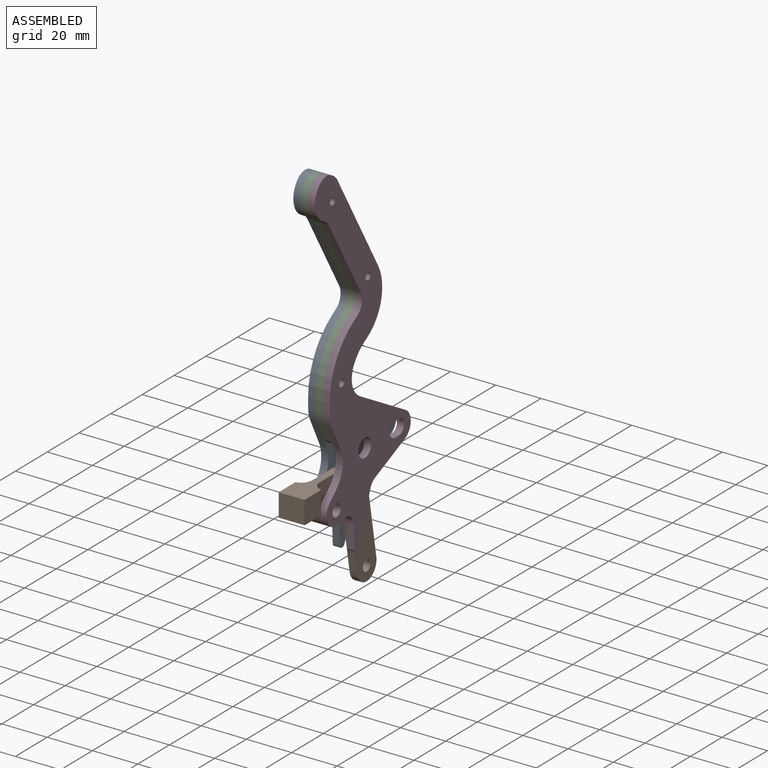
[diagram: assembled view]
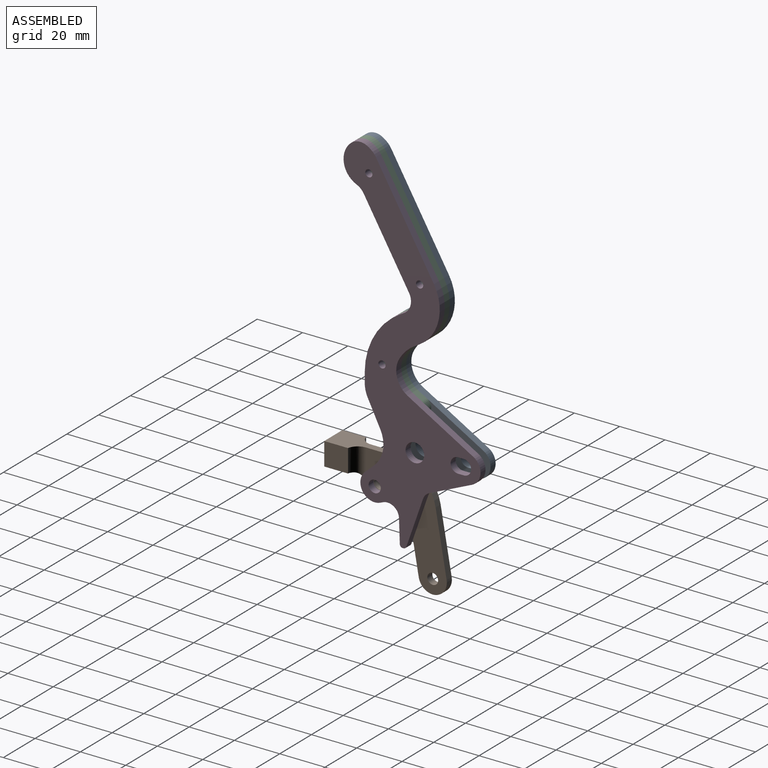
[diagram: assembled view, second angle]
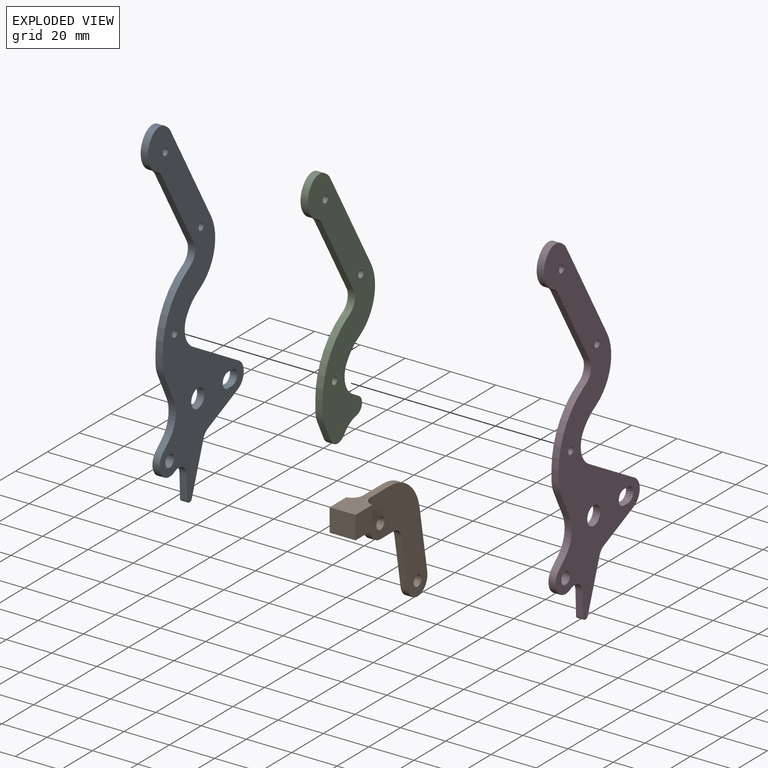
[diagram: exploded view]
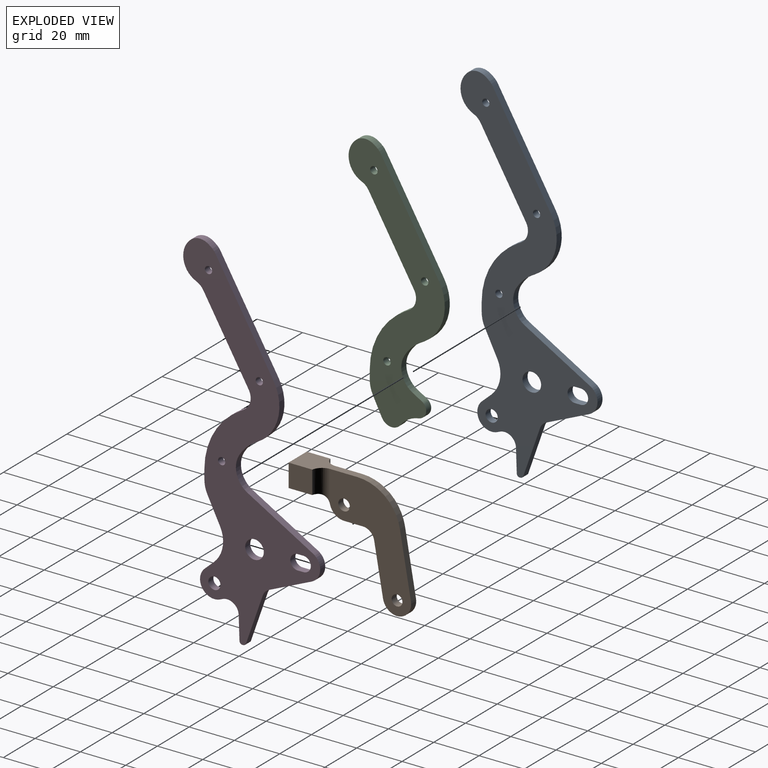
[diagram: exploded view, second angle]
ASSEMBLY  parts=4 mates=3
PART A: 43 faces, bbox 3.2x60.5x157.1 mm
  f0: plane 3.18x0.4mm, normal (0,0.03,-1), area 1.3mm2, adj f34,f35,f41,f42
  f1: plane 43.86x25.63mm, normal (0,0.86,0.5), area 161.3mm2, adj f16,f17,f34,f35
  f2: plane 3.18x0.99mm, normal (0,0.57,0.82), area 3.8mm2, adj f17,f18,f34,f35
  f3: plane 4.07x3.18mm, normal (0,-1,0), area 12.9mm2, adj f24,f25,f34,f35
  f4: cylinder r=3.26mm len=6.53mm, axis (-1,0,0), area 32.6mm2, adj f5,f30,f34,f35
  f5: plane 3.18x2.54mm, normal (0,0,1), area 8.1mm2, adj f4,f6,f34,f35
  f6: cylinder r=3.26mm len=6.53mm, axis (-1,0,0), area 32.6mm2, adj f5,f30,f34,f35
  f7: plane 3.18x1.02mm, normal (0,0.41,-0.91), area 3.5mm2, adj f31,f34,f35,f39
  f8: plane 10.24x3.18mm, normal (0,-1,-0.03), area 32.5mm2, adj f34,f35,f39,f41
  f9: plane 21.21x7.41mm, normal (0,0.94,-0.33), area 71.3mm2, adj f34,f35,f40,f42
  f10: plane 18.86x8.38mm, normal (0,0.41,-0.91), area 65.5mm2, adj f11,f34,f35,f40
  f11: cylinder r=6.35mm len=11.32mm, axis (-1,0,0), area 44.4mm2, adj f10,f33,f34,f35
  f12: cylinder r=12.7mm len=3.18mm, axis (-1,0,0), area 1.2mm2, adj f13,f33,f34,f35
  f13: cylinder r=10.16mm len=13.79mm, axis (-1,0,0), area 50mm2, adj f12,f14,f34,f35
  f14: cylinder r=19.05mm len=6.92mm, axis (-1,0,0), area 31.4mm2, adj f13,f15,f34,f35
  f15: plane 3.18x1.39mm, normal (0,0.5,-0.87), area 5.1mm2, adj f14,f16,f34,f35
  f16: cylinder r=19.05mm len=26.11mm, axis (-1,0,0), area 95.3mm2, adj f1,f15,f34,f35
  f17: cylinder r=7.62mm len=3.18mm, axis (-1,0,0), area 10.6mm2, adj f1,f2,f34,f35
  f18: cylinder r=6.35mm len=7.84mm, axis (-1,0,0), area 26.9mm2, adj f2,f19,f34,f35
  f19: cylinder r=9.53mm len=15.89mm, axis (-1,0,0), area 61mm2, adj f18,f20,f34,f35
  f20: cylinder r=6.35mm len=3.18mm, axis (-1,0,0), area 13mm2, adj f19,f21,f34,f35
  f21: plane 34.36x20.07mm, normal (0,-0.86,-0.5), area 126.3mm2, adj f20,f22,f34,f35
  f22: cylinder r=6.35mm len=8.7mm, axis (-1,0,0), area 31.8mm2, adj f21,f23,f34,f35
  f23: plane 3.18x1.39mm, normal (0,-0.5,0.87), area 5.1mm2, adj f22,f24,f34,f35
  f24: cylinder r=31.75mm len=27.5mm, axis (-1,0,0), area 105.6mm2, adj f3,f23,f34,f35
  f25: cylinder r=12.7mm len=5.68mm, axis (-1,0,0), area 18.7mm2, adj f3,f26,f34,f35
  f26: plane 11.19x5.59mm, normal (0,-0.89,-0.45), area 39.7mm2, adj f25,f27,f34,f35
  f27: cylinder r=12.7mm len=15.08mm, axis (-1,0,0), area 52.3mm2, adj f26,f28,f34,f35
  f28: plane 3.97x3.61mm, normal (0,-0.67,0.74), area 17mm2, adj f27,f31,f34,f35
  f29: cylinder r=4.1mm len=8.2mm, axis (-1,0,0), area 81.8mm2, adj f34,f35
  f30: plane 3.18x2.54mm, normal (0,0,-1), area 8.1mm2, adj f4,f6,f34,f35
  f31: cylinder r=6.34mm len=11.03mm, axis (-1,0,0), area 56.8mm2, adj f7,f28,f34,f35
  f32: cylinder r=2.67mm len=5.33mm, axis (-1,0,0), area 53.2mm2, adj f34,f35
  f33: plane 28.84x16.48mm, normal (0,0.5,0.87), area 105.5mm2, adj f11,f12,f34,f35
  f34: plane 157.1x60.49mm, normal (-1,0,0), area 2914.2mm2, adj f0,f1,f2,f3,f4,f5,f6,f7
  f35: plane 157.1x60.49mm, normal (1,0,0), area 2914.2mm2, adj f0,f1,f2,f3,f4,f5,f6,f7
  f36: cylinder r=1.59mm len=3.18mm, axis (1,0,0), area 31.7mm2, adj f34,f35
  f37: cylinder r=1.59mm len=3.18mm, axis (1,0,0), area 31.7mm2, adj f34,f35
  f38: cylinder r=1.59mm len=3.18mm, axis (1,0,0), area 31.7mm2, adj f34,f35
  f39: cylinder r=5.08mm len=7.14mm, axis (-1,0,0), area 31.5mm2, adj f7,f8,f34,f35
  f40: cylinder r=5.08mm len=3.18mm, axis (-1,0,0), area 13.2mm2, adj f9,f10,f34,f35
  f41: cylinder r=1.27mm len=3.18mm, axis (-1,0,0), area 6.3mm2, adj f0,f8,f34,f35
  f42: cylinder r=1.27mm len=3.18mm, axis (-1,0,0), area 4.8mm2, adj f0,f9,f34,f35
PART B: 22 faces, bbox 11.4x51.2x50.8 mm
  f0: plane 11.43x10.16mm, normal (0,-1,0), area 116.1mm2, adj f1,f7,f16,f17
  f1: plane 27.5x11.43mm, normal (0,0,-1), area 183.8mm2, adj f0,f9,f10,f15,f16,f17,f20,f21
  f2: plane 27.61x4.87mm, normal (0,0.98,-0.17), area 89mm2, adj f9,f10,f11,f15
  f3: plane 22.3x3.93mm, normal (0,-0.98,0.17), area 71.9mm2, adj f9,f10,f12,f14
  f4: plane 8.29x3.18mm, normal (0,0,1), area 26.3mm2, adj f5,f9,f10,f14
  f5: cylinder r=6.35mm len=6.19mm, axis (-1,0,0), area 27.2mm2, adj f4,f9,f10,f13,f20,f21
  f6: cylinder r=2.54mm len=5.08mm, axis (-1,0,0), area 50.7mm2, adj f9,f10
  f7: plane 11.43x10.45mm, normal (0,0,1), area 81.9mm2, adj f0,f13,f16,f17,f19
  f8: cylinder r=2.38mm len=4.76mm, axis (-1,0,0), area 47.5mm2, adj f9,f10
  f9: plane 50.8x35.78mm, normal (1,0,0), area 857.7mm2, adj f1,f2,f3,f4,f5,f6,f8,f11
  f10: plane 50.8x35.78mm, normal (-1,0,0), area 857.7mm2, adj f1,f2,f3,f4,f5,f6,f8,f11
  f11: cylinder r=6.35mm len=7.45mm, axis (-1,0,0), area 34.9mm2, adj f2,f9,f10,f12
  f12: cylinder r=6.35mm len=6.16mm, axis (1,0,0), area 27.8mm2, adj f3,f9,f10,f11
  f13: cylinder r=5.08mm len=11.43mm, axis (-1,0,0), area 32.6mm2, adj f5,f7,f20,f21
  f14: cylinder r=5.08mm len=5mm, axis (-1,0,0), area 22.5mm2, adj f3,f4,f9,f10
  f15: cylinder r=19.05mm len=18.76mm, axis (1,0,0), area 84.5mm2, adj f1,f2,f9,f10
  f16: plane 10.45x10.16mm, normal (-1,0,0), area 106.1mm2, adj f0,f1,f7,f21
  f17: plane 10.45x10.16mm, normal (1,0,0), area 106.1mm2, adj f0,f1,f7,f20
  f18: cone r=0mm half-angle=59deg, axis (0,0,1), area 43.7mm2, adj f19
  f19: cylinder r=3.45mm len=6.91mm, axis (0,0,1), area 124mm2, adj f7,f18
  f20: cylinder r=5.08mm len=14.26mm, axis (0,0,-1), area 76.8mm2, adj f1,f5,f9,f13,f17
  f21: cylinder r=5.08mm len=14.26mm, axis (0,0,-1), area 76.8mm2, adj f1,f5,f10,f13,f16
PART C: 27 faces, bbox 3.2x42.5x112 mm
  f0: cylinder r=3.86mm len=7.16mm, axis (1,0,0), area 30.2mm2, adj f1,f21,f22,f23
  f1: plane 3.87x3.18mm, normal (0,0.5,0.87), area 14.2mm2, adj f0,f2,f22,f23
  f2: cylinder r=12.7mm len=3.18mm, axis (1,0,0), area 1.2mm2, adj f1,f3,f22,f23
  f3: cylinder r=10.16mm len=13.79mm, axis (1,0,0), area 50mm2, adj f2,f4,f22,f23
  f4: cylinder r=19.05mm len=6.92mm, axis (1,0,0), area 31.4mm2, adj f3,f5,f22,f23
  f5: plane 3.18x1.39mm, normal (0,0.5,-0.87), area 5.1mm2, adj f4,f6,f22,f23
  f6: cylinder r=19.05mm len=26.11mm, axis (1,0,0), area 95.3mm2, adj f5,f7,f22,f23
  f7: plane 43.86x25.63mm, normal (0,0.86,0.5), area 161.3mm2, adj f6,f8,f22,f23
  f8: cylinder r=7.62mm len=3.18mm, axis (1,0,0), area 10.6mm2, adj f7,f9,f22,f23
  f9: plane 3.18x0.99mm, normal (0,0.57,0.82), area 3.8mm2, adj f8,f10,f22,f23
  f10: cylinder r=6.35mm len=7.84mm, axis (1,0,0), area 26.9mm2, adj f9,f11,f22,f23
  f11: cylinder r=9.53mm len=15.89mm, axis (1,0,0), area 61mm2, adj f10,f12,f22,f23
  f12: cylinder r=6.35mm len=3.18mm, axis (1,0,0), area 13mm2, adj f11,f13,f22,f23
  f13: plane 34.36x20.07mm, normal (0,-0.86,-0.5), area 126.3mm2, adj f12,f14,f22,f23
  f14: cylinder r=6.35mm len=8.7mm, axis (1,0,0), area 31.8mm2, adj f13,f15,f22,f23
  f15: plane 3.18x1.39mm, normal (0,-0.5,0.87), area 5.1mm2, adj f14,f16,f22,f23
  f16: cylinder r=31.75mm len=27.5mm, axis (1,0,0), area 105.6mm2, adj f15,f17,f22,f23
  f17: plane 4.07x3.18mm, normal (0,-1,0), area 12.9mm2, adj f16,f18,f22,f23
  f18: cylinder r=12.7mm len=5.68mm, axis (1,0,0), area 18.7mm2, adj f17,f19,f22,f23
  f19: plane 8.04x4.02mm, normal (0,-0.89,-0.45), area 28.5mm2, adj f18,f20,f22,f23
  f20: cylinder r=4.85mm len=8.19mm, axis (1,0,0), area 31.2mm2, adj f19,f21,f22,f23
  f21: cylinder r=12.7mm len=8.11mm, axis (1,0,0), area 30.7mm2, adj f0,f20,f22,f23
  f22: plane 111.97x42.49mm, normal (-1,0,0), area 1704.6mm2, adj f0,f1,f2,f3,f4,f5,f6,f7
  f23: plane 111.97x42.49mm, normal (1,0,0), area 1704.6mm2, adj f0,f1,f2,f3,f4,f5,f6,f7
  f24: cylinder r=1.63mm len=3.25mm, axis (1,0,0), area 32.4mm2, adj f22,f23
  f25: cylinder r=1.63mm len=3.25mm, axis (1,0,0), area 32.4mm2, adj f22,f23
  f26: cylinder r=1.63mm len=3.25mm, axis (1,0,0), area 32.4mm2, adj f22,f23
PART D: 43 faces, bbox 3.2x60.5x157.1 mm
  f0: cylinder r=4.1mm len=8.2mm, axis (-1,0,0), area 81.8mm2, adj f33,f35
  f1: plane 3.18x2.54mm, normal (0,0,-1), area 8.1mm2, adj f2,f4,f33,f35
  f2: cylinder r=3.26mm len=6.53mm, axis (-1,0,0), area 32.6mm2, adj f1,f3,f33,f35
  f3: plane 3.18x2.54mm, normal (0,0,1), area 8.1mm2, adj f2,f4,f33,f35
  f4: cylinder r=3.26mm len=6.53mm, axis (-1,0,0), area 32.6mm2, adj f1,f3,f33,f35
  f5: plane 10.24x3.18mm, normal (0,-1,-0.03), area 32.5mm2, adj f33,f35,f39,f41
  f6: plane 3.18x1.02mm, normal (0,0.41,-0.91), area 3.5mm2, adj f10,f33,f35,f39
  f7: plane 3.97x3.61mm, normal (0,-0.67,0.74), area 17mm2, adj f8,f10,f33,f35
  f8: cylinder r=12.7mm len=15.08mm, axis (-1,0,0), area 52.3mm2, adj f7,f9,f33,f35
  f9: plane 11.19x5.59mm, normal (0,-0.89,-0.45), area 39.7mm2, adj f8,f11,f33,f35
  f10: cylinder r=6.34mm len=11.03mm, axis (-1,0,0), area 56.8mm2, adj f6,f7,f33,f35
  f11: cylinder r=12.7mm len=5.68mm, axis (-1,0,0), area 18.7mm2, adj f9,f12,f33,f35
  f12: plane 4.07x3.18mm, normal (0,-1,0), area 12.9mm2, adj f11,f17,f33,f35
  f13: plane 3.18x1.39mm, normal (0,-0.5,0.87), area 5.1mm2, adj f14,f17,f33,f35
  f14: cylinder r=6.35mm len=8.7mm, axis (-1,0,0), area 31.8mm2, adj f13,f15,f33,f35
  f15: plane 34.36x20.07mm, normal (0,-0.86,-0.5), area 126.3mm2, adj f14,f16,f33,f35
  f16: cylinder r=6.35mm len=3.18mm, axis (-1,0,0), area 13mm2, adj f15,f18,f33,f35
  f17: cylinder r=31.75mm len=27.5mm, axis (-1,0,0), area 105.6mm2, adj f12,f13,f33,f35
  f18: cylinder r=9.53mm len=15.89mm, axis (-1,0,0), area 61mm2, adj f16,f19,f33,f35
  f19: cylinder r=6.35mm len=7.84mm, axis (-1,0,0), area 26.9mm2, adj f18,f20,f33,f35
  f20: plane 3.18x0.99mm, normal (0,0.57,0.82), area 3.8mm2, adj f19,f21,f33,f35
  f21: cylinder r=7.62mm len=3.18mm, axis (-1,0,0), area 10.6mm2, adj f20,f22,f33,f35
  f22: plane 43.86x25.63mm, normal (0,0.86,0.5), area 161.3mm2, adj f21,f27,f33,f35
  f23: plane 3.18x1.39mm, normal (0,0.5,-0.87), area 5.1mm2, adj f24,f27,f33,f35
  f24: cylinder r=19.05mm len=6.92mm, axis (-1,0,0), area 31.4mm2, adj f23,f25,f33,f35
  f25: cylinder r=10.16mm len=13.79mm, axis (-1,0,0), area 50mm2, adj f24,f26,f33,f35
  f26: cylinder r=12.7mm len=3.18mm, axis (-1,0,0), area 1.2mm2, adj f25,f28,f33,f35
  f27: cylinder r=19.05mm len=26.11mm, axis (-1,0,0), area 95.3mm2, adj f22,f23,f33,f35
  f28: plane 28.84x16.48mm, normal (0,0.5,0.87), area 105.5mm2, adj f26,f31,f33,f35
  f29: plane 18.86x8.38mm, normal (0,0.41,-0.91), area 65.5mm2, adj f31,f33,f35,f40
  f30: plane 21.21x7.41mm, normal (0,0.94,-0.33), area 71.3mm2, adj f33,f35,f40,f42
  f31: cylinder r=6.35mm len=11.32mm, axis (-1,0,0), area 44.4mm2, adj f28,f29,f33,f35
  f32: plane 3.18x0.4mm, normal (0,0.03,-1), area 1.3mm2, adj f33,f35,f41,f42
  f33: plane 157.1x60.49mm, normal (1,0,0), area 2914.2mm2, adj f0,f1,f2,f3,f4,f5,f6,f7
  f34: cylinder r=2.67mm len=5.33mm, axis (-1,0,0), area 53.2mm2, adj f33,f35
  f35: plane 157.1x60.49mm, normal (-1,0,0), area 2914.2mm2, adj f0,f1,f2,f3,f4,f5,f6,f7
  f36: cylinder r=1.59mm len=3.18mm, axis (-1,0,0), area 31.7mm2, adj f33,f35
  f37: cylinder r=1.59mm len=3.18mm, axis (-1,0,0), area 31.7mm2, adj f33,f35
  f38: cylinder r=1.59mm len=3.18mm, axis (-1,0,0), area 31.7mm2, adj f33,f35
  f39: cylinder r=5.08mm len=7.14mm, axis (-1,0,0), area 31.5mm2, adj f5,f6,f33,f35
  f40: cylinder r=5.08mm len=3.18mm, axis (-1,0,0), area 13.2mm2, adj f29,f30,f33,f35
  f41: cylinder r=1.27mm len=3.18mm, axis (-1,0,0), area 6.3mm2, adj f5,f32,f33,f35
  f42: cylinder r=1.27mm len=3.18mm, axis (-1,0,0), area 4.8mm2, adj f30,f32,f33,f35
PLACE A at identity
PLACE B rot(axis=(0,-1,0),180deg) t=(0,-52.74,-18.19)mm
PLACE C t=(1.59,-25.94,28.83)mm
PLACE D at identity
MATE fastened D.f36 <-> C.f24  axis (-1,0,0) through (1.59,-55.32,106.08)mm
MATE revolute B.f6 <-> A.f31  axis (-1,0,0) through (-1.59,-52.74,-18.19)mm
MATE fastened C.f24 <-> A.f36  axis (-1,0,0) through (-1.59,-55.32,106.08)mm
